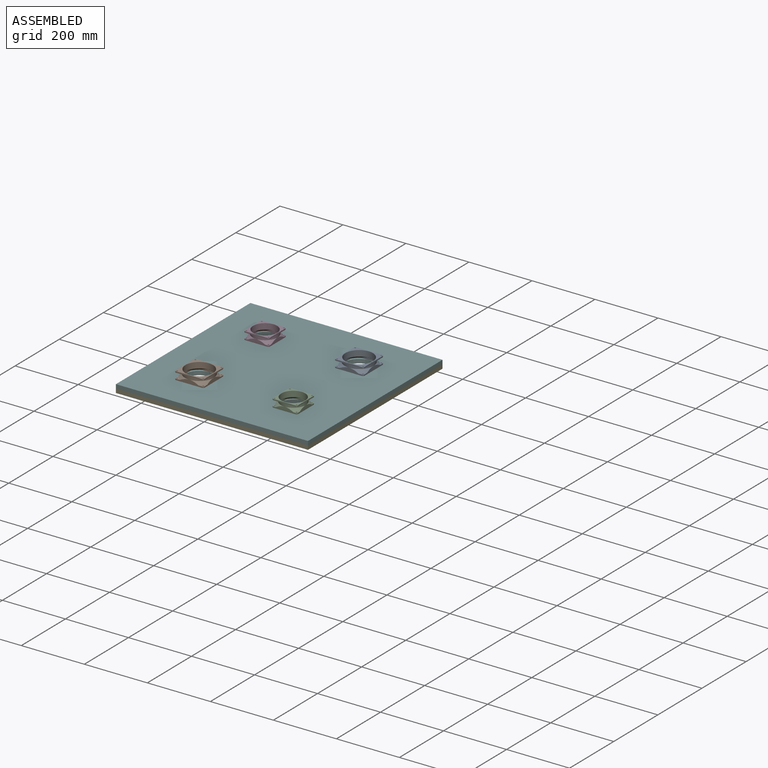
[diagram: assembled view]
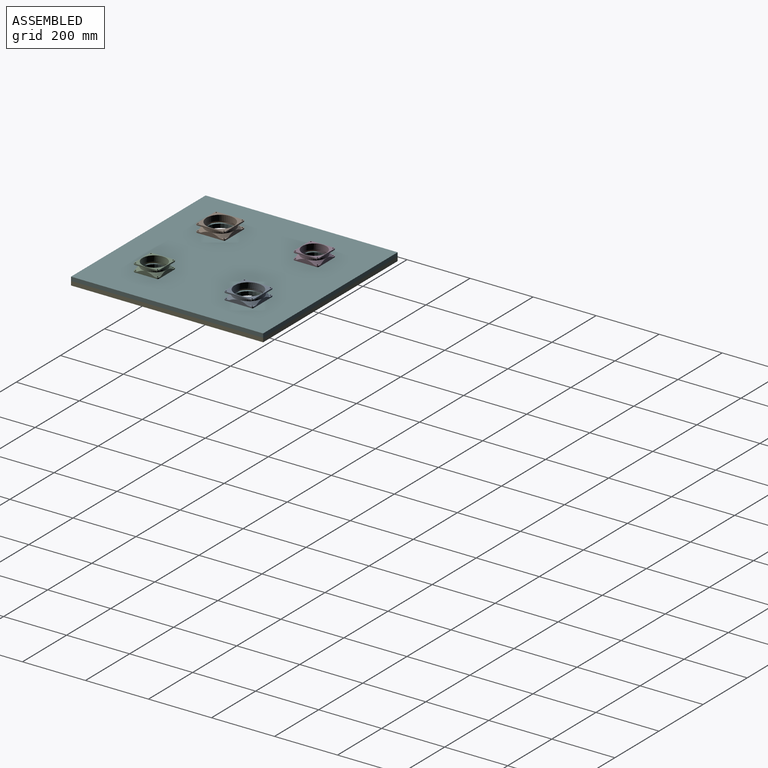
[diagram: assembled view, second angle]
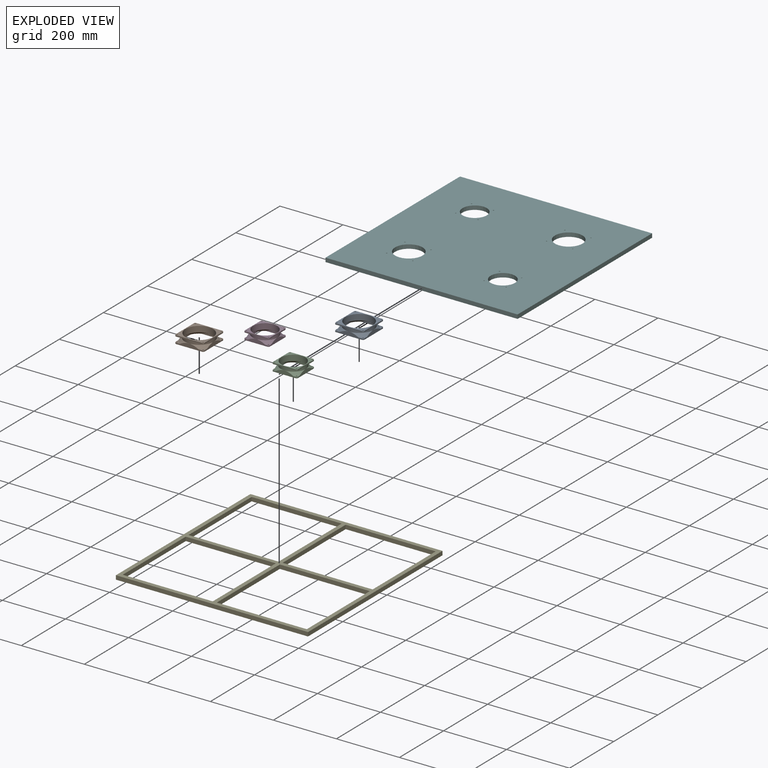
[diagram: exploded view]
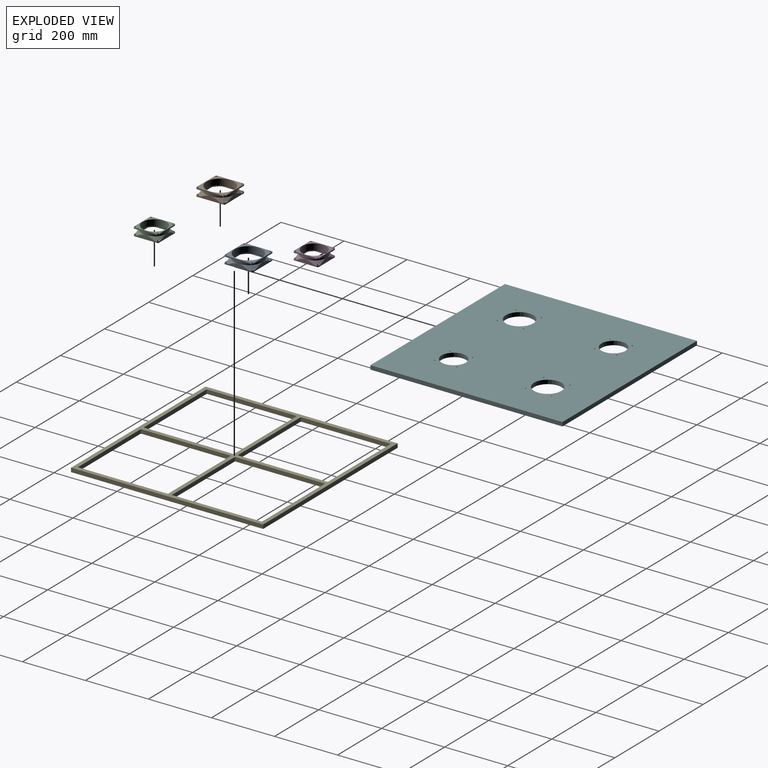
[diagram: exploded view, second angle]
ASSEMBLY  parts=6 mates=15
PART A: 45 faces, bbox 109.2x109.2x25.4 mm
  f0: cone r=50.93mm half-angle=45deg, axis (0,0,-1), area 1718.2mm2, adj f16,f23,f41,f42,f43,f44
  f1: plane 82.69x12.7mm, normal (1,0,0), area 667.7mm2, adj f9,f12,f23,f33,f36,f37,f39
  f2: plane 82.69x12.7mm, normal (0,1,0), area 667.7mm2, adj f9,f10,f23,f33,f34,f37,f38
  f3: plane 82.69x12.7mm, normal (-1,0,0), area 667.7mm2, adj f10,f11,f23,f32,f34,f38,f40
  f4: cylinder r=2.15mm len=4.31mm, axis (0,0,-1), area 54.1mm2, adj f23,f33
  f5: cylinder r=2.15mm len=4.31mm, axis (0,0,-1), area 54.1mm2, adj f23,f34
  f6: cylinder r=2.15mm len=4.31mm, axis (0,0,-1), area 54.1mm2, adj f23,f32
  f7: cylinder r=2.15mm len=4.31mm, axis (0,0,-1), area 54.1mm2, adj f23,f36
  f8: plane 82.69x12.7mm, normal (0,-1,0), area 667.7mm2, adj f11,f12,f23,f32,f36,f39,f40
  f9: cylinder r=4.53mm len=4.53mm, axis (0,0,1), area 28.5mm2, adj f1,f2,f23,f33
  f10: cylinder r=4.53mm len=4.53mm, axis (0,0,-1), area 28.5mm2, adj f2,f3,f23,f34
  f11: cylinder r=4.53mm len=4.53mm, axis (0,0,1), area 28.5mm2, adj f3,f8,f23,f32
  f12: cylinder r=4.53mm len=4.53mm, axis (0,0,-1), area 28.5mm2, adj f1,f8,f23,f36
  f13: plane 82.69x4mm, normal (1,0,0), area 330.8mm2, adj f22,f24,f27,f30,f35
  f14: plane 82.69x4mm, normal (0,1,0), area 330.8mm2, adj f22,f24,f25,f30,f31
  f15: plane 82.69x4mm, normal (-1,0,0), area 330.8mm2, adj f22,f25,f26,f29,f31
  f16: cylinder r=43.81mm len=87.63mm, axis (0,0,-1), area 5034.6mm2, adj f0,f22
  f17: cylinder r=2.15mm len=4.31mm, axis (0,0,-1), area 54.1mm2, adj f22,f30
  f18: cylinder r=2.15mm len=4.31mm, axis (0,0,-1), area 54.1mm2, adj f22,f31
  f19: cylinder r=2.15mm len=4.31mm, axis (0,0,-1), area 54.1mm2, adj f22,f29
  f20: cylinder r=2.15mm len=4.31mm, axis (0,0,-1), area 54.1mm2, adj f22,f35
  f21: plane 82.69x4mm, normal (0,-1,0), area 330.8mm2, adj f22,f26,f27,f29,f35
  f22: plane 91.76x91.76mm, normal (0,0,1), area 2312.5mm2, adj f13,f14,f15,f16,f17,f18,f19,f20
  f23: plane 91.76x91.76mm, normal (0,0,-1), area 1097.5mm2, adj f0,f1,f2,f3,f4,f5,f6,f7
  f24: cylinder r=4.53mm len=4.53mm, axis (0,0,1), area 28.5mm2, adj f13,f14,f22,f30
  f25: cylinder r=4.53mm len=4.53mm, axis (0,0,-1), area 28.5mm2, adj f14,f15,f22,f31
  f26: cylinder r=4.53mm len=4.53mm, axis (0,0,1), area 28.5mm2, adj f15,f21,f22,f29
  f27: cylinder r=4.53mm len=4.53mm, axis (0,0,-1), area 28.5mm2, adj f13,f21,f22,f35
  f28: cylinder r=45.88mm len=91.76mm, axis (0,0,1), area 2507.8mm2, adj f29,f30,f31,f35,f37,f38,f39,f40
  f29: plane 45.88x45.88mm, normal (0,0,-1), area 432.7mm2, adj f15,f19,f21,f26,f28
  f30: plane 45.88x45.88mm, normal (0,0,-1), area 432.7mm2, adj f13,f14,f17,f24,f28
  f31: plane 45.88x45.88mm, normal (0,0,-1), area 432.7mm2, adj f14,f15,f18,f25,f28
  f32: plane 16.32x16.32mm, normal (0,0,1), area 95.1mm2, adj f3,f6,f8,f11,f40
  f33: plane 16.32x16.32mm, normal (0,0,1), area 95.1mm2, adj f1,f2,f4,f9,f37
  f34: plane 16.32x16.32mm, normal (0,0,1), area 95.1mm2, adj f2,f3,f5,f10,f38
  f35: plane 45.88x45.88mm, normal (0,0,-1), area 432.7mm2, adj f13,f20,f21,f27,f28
  f36: plane 16.32x16.32mm, normal (0,0,1), area 95.1mm2, adj f1,f7,f8,f12,f39
  f37: cone r=45.88mm half-angle=45deg, axis (0,0,-1), area 477.5mm2, adj f1,f2,f28,f33
  f38: cone r=45.88mm half-angle=45deg, axis (0,0,-1), area 477.5mm2, adj f2,f3,f28,f34
  f39: cone r=45.88mm half-angle=45deg, axis (0,0,-1), area 477.5mm2, adj f1,f8,f28,f36
  f40: cone r=45.88mm half-angle=45deg, axis (0,0,-1), area 477.5mm2, adj f3,f8,f28,f32
  f41: plane 50.29x6.66mm, normal (0,-1,0), area 219.3mm2, adj f0,f23
  f42: plane 50.29x6.66mm, normal (-1,0,0), area 219.3mm2, adj f0,f23
  f43: plane 50.29x6.66mm, normal (1,0,0), area 219.3mm2, adj f0,f23
  f44: plane 50.29x6.66mm, normal (0,1,0), area 219.3mm2, adj f0,f23
PART B: same geometry as A
PART C: 48 faces, bbox 96.8x96.8x25.4 mm
  f0: cone r=45.21mm half-angle=45deg, axis (0,0,-1), area 326.2mm2, adj f18,f25,f45,f47
  f1: cone r=45.21mm half-angle=45deg, axis (0,0,-1), area 326.2mm2, adj f18,f25,f46,f47
  f2: cone r=45.21mm half-angle=45deg, axis (0,0,-1), area 326.2mm2, adj f18,f25,f44,f46
  f3: plane 70.31x12.7mm, normal (1,0,0), area 595.9mm2, adj f11,f14,f25,f35,f38,f39,f41
  f4: plane 70.31x12.7mm, normal (0,1,0), area 595.9mm2, adj f11,f12,f25,f35,f36,f39,f40
  f5: plane 70.31x12.7mm, normal (-1,0,0), area 595.9mm2, adj f12,f13,f25,f34,f36,f40,f42
  f6: cylinder r=2.15mm len=4.83mm, axis (0,0,-1), area 56.2mm2, adj f25,f35,f39
  f7: cylinder r=2.15mm len=4.83mm, axis (0,0,-1), area 56.2mm2, adj f25,f36,f40
  f8: cylinder r=2.15mm len=4.83mm, axis (0,0,-1), area 56.2mm2, adj f25,f34,f42
  f9: cylinder r=2.15mm len=4.83mm, axis (0,0,-1), area 56.2mm2, adj f25,f38,f41
  f10: plane 70.31x12.7mm, normal (0,-1,0), area 595.9mm2, adj f13,f14,f25,f34,f38,f41,f42
  f11: cylinder r=4.53mm len=4.53mm, axis (0,0,1), area 28.5mm2, adj f3,f4,f25,f35
  f12: cylinder r=4.53mm len=4.53mm, axis (0,0,-1), area 28.5mm2, adj f4,f5,f25,f36
  f13: cylinder r=4.53mm len=4.53mm, axis (0,0,1), area 28.5mm2, adj f5,f10,f25,f34
  f14: cylinder r=4.53mm len=4.53mm, axis (0,0,-1), area 28.5mm2, adj f3,f10,f25,f38
  f15: plane 70.31x4mm, normal (1,0,0), area 281.3mm2, adj f24,f26,f29,f32,f37
  f16: plane 70.31x4mm, normal (0,1,0), area 281.3mm2, adj f24,f26,f27,f32,f33
  f17: plane 70.31x4mm, normal (-1,0,0), area 281.3mm2, adj f24,f27,f28,f31,f33
  f18: cylinder r=38.1mm len=76.2mm, axis (0,0,-1), area 4378mm2, adj f0,f1,f2,f24,f43
  f19: cylinder r=2.15mm len=4.31mm, axis (0,0,-1), area 54.1mm2, adj f24,f32
  f20: cylinder r=2.15mm len=4.31mm, axis (0,0,-1), area 54.1mm2, adj f24,f33
  f21: cylinder r=2.15mm len=4.31mm, axis (0,0,-1), area 54.1mm2, adj f24,f31
  f22: cylinder r=2.15mm len=4.31mm, axis (0,0,-1), area 54.1mm2, adj f24,f37
  f23: plane 70.31x4mm, normal (0,-1,0), area 281.3mm2, adj f24,f28,f29,f31,f37
  f24: plane 79.38x79.38mm, normal (0,0,1), area 1664.1mm2, adj f15,f16,f17,f18,f19,f20,f21,f22
  f25: plane 79.38x79.38mm, normal (0,0,-1), area 741.6mm2, adj f0,f1,f2,f3,f4,f5,f6,f7
  f26: cylinder r=4.53mm len=4.53mm, axis (0,0,1), area 28.5mm2, adj f15,f16,f24,f32
  f27: cylinder r=4.53mm len=4.53mm, axis (0,0,-1), area 28.5mm2, adj f16,f17,f24,f33
  f28: cylinder r=4.53mm len=4.53mm, axis (0,0,1), area 28.5mm2, adj f17,f23,f24,f31
  f29: cylinder r=4.53mm len=4.53mm, axis (0,0,-1), area 28.5mm2, adj f15,f23,f24,f37
  f30: cylinder r=39.69mm len=79.38mm, axis (0,0,1), area 2169.3mm2, adj f31,f32,f33,f37,f39,f40,f41,f42
  f31: plane 39.69x39.69mm, normal (0,0,-1), area 319mm2, adj f17,f21,f23,f28,f30
  f32: plane 39.69x39.69mm, normal (0,0,-1), area 319mm2, adj f15,f16,f19,f26,f30
  f33: plane 39.69x39.69mm, normal (0,0,-1), area 319mm2, adj f16,f17,f20,f27,f30
  f34: plane 12.01x12.01mm, normal (0,0,1), area 46.5mm2, adj f5,f8,f10,f13,f42
  f35: plane 12.01x12.01mm, normal (0,0,1), area 46.5mm2, adj f3,f4,f6,f11,f39
  f36: plane 12.01x12.01mm, normal (0,0,1), area 46.5mm2, adj f4,f5,f7,f12,f40
  f37: plane 39.69x39.69mm, normal (0,0,-1), area 319mm2, adj f15,f22,f23,f29,f30
  f38: plane 12.01x12.01mm, normal (0,0,1), area 46.5mm2, adj f3,f9,f10,f14,f41
  f39: cone r=39.69mm half-angle=45deg, axis (0,0,-1), area 385.4mm2, adj f3,f4,f6,f30,f35
  f40: cone r=39.69mm half-angle=45deg, axis (0,0,-1), area 385.4mm2, adj f4,f5,f7,f30,f36
  f41: cone r=39.69mm half-angle=45deg, axis (0,0,-1), area 385.4mm2, adj f3,f9,f10,f30,f38
  f42: cone r=39.69mm half-angle=45deg, axis (0,0,-1), area 385.4mm2, adj f5,f8,f10,f30,f34
  f43: cone r=45.21mm half-angle=45deg, axis (0,0,-1), area 326.2mm2, adj f18,f25,f44,f45
  f44: plane 48.7x7.13mm, normal (0,-1,0), area 226.8mm2, adj f2,f25,f43
  f45: plane 48.7x7.13mm, normal (-1,0,0), area 226.8mm2, adj f0,f25,f43
  f46: plane 48.7x7.13mm, normal (1,0,0), area 226.8mm2, adj f1,f2,f25
  f47: plane 48.7x7.13mm, normal (0,1,0), area 226.8mm2, adj f0,f1,f25
PART D: same geometry as C
PART E: 22 faces, bbox 609.6x609.6x12.7 mm
  f0: plane 285.75x12.7mm, normal (-1,0,0), area 3629mm2, adj f1,f19,f20,f21
  f1: plane 285.75x12.7mm, normal (0,1,0), area 3629mm2, adj f0,f2,f20,f21
  f2: plane 285.75x12.7mm, normal (1,0,0), area 3629mm2, adj f1,f19,f20,f21
  f3: plane 285.75x12.7mm, normal (1,0,0), area 3629mm2, adj f4,f15,f20,f21
  f4: plane 285.75x12.7mm, normal (0,-1,0), area 3629mm2, adj f3,f5,f20,f21
  f5: plane 285.75x12.7mm, normal (-1,0,0), area 3629mm2, adj f4,f15,f20,f21
  f6: plane 609.6x12.7mm, normal (0,-1,0), area 7741.9mm2, adj f7,f16,f20,f21
  f7: plane 609.6x12.7mm, normal (1,0,0), area 7741.9mm2, adj f6,f8,f20,f21
  f8: plane 609.6x12.7mm, normal (0,1,0), area 7741.9mm2, adj f7,f16,f20,f21
  f9: plane 285.75x12.7mm, normal (0,-1,0), area 3629mm2, adj f10,f17,f20,f21
  f10: plane 285.75x12.7mm, normal (-1,0,0), area 3629mm2, adj f9,f11,f20,f21
  f11: plane 285.75x12.7mm, normal (0,1,0), area 3629mm2, adj f10,f17,f20,f21
  f12: plane 285.75x12.7mm, normal (0,1,0), area 3629mm2, adj f13,f18,f20,f21
  f13: plane 285.75x12.7mm, normal (1,0,0), area 3629mm2, adj f12,f14,f20,f21
  f14: plane 285.75x12.7mm, normal (0,-1,0), area 3629mm2, adj f13,f18,f20,f21
  f15: plane 285.75x12.7mm, normal (0,1,0), area 3629mm2, adj f3,f5,f20,f21
  f16: plane 609.6x12.7mm, normal (-1,0,0), area 7741.9mm2, adj f6,f8,f20,f21
  f17: plane 285.75x12.7mm, normal (1,0,0), area 3629mm2, adj f9,f11,f20,f21
  f18: plane 285.75x12.7mm, normal (-1,0,0), area 3629mm2, adj f12,f14,f20,f21
  f19: plane 285.75x12.7mm, normal (0,-1,0), area 3629mm2, adj f0,f2,f20,f21
  f20: plane 609.6x609.6mm, normal (0,0,1), area 44999.9mm2, adj f0,f1,f2,f3,f4,f5,f6,f7
  f21: plane 609.6x609.6mm, normal (0,0,-1), area 44999.9mm2, adj f0,f1,f2,f3,f4,f5,f6,f7
PART F: 26 faces, bbox 609.6x609.6x12.7 mm
  f0: plane 609.6x12.7mm, normal (0,-1,0), area 7741.9mm2, adj f1,f23,f24,f25
  f1: plane 609.6x12.7mm, normal (1,0,0), area 7741.9mm2, adj f0,f2,f24,f25
  f2: plane 609.6x12.7mm, normal (0,1,0), area 7741.9mm2, adj f1,f23,f24,f25
  f3: cylinder r=43.87mm len=87.73mm, axis (0,0,-1), area 3500.3mm2, adj f24,f25
  f4: cylinder r=38.73mm len=77.47mm, axis (0,0,-1), area 3090.9mm2, adj f24,f25
  f5: cylinder r=43.87mm len=87.73mm, axis (0,0,-1), area 3500.3mm2, adj f24,f25
  f6: cylinder r=38.73mm len=77.47mm, axis (0,0,-1), area 3090.9mm2, adj f24,f25
  f7: cylinder r=1.83mm len=12.7mm, axis (0,0,-1), area 145.9mm2, adj f24,f25
  f8: cylinder r=1.83mm len=12.7mm, axis (0,0,-1), area 145.9mm2, adj f24,f25
  f9: cylinder r=1.83mm len=12.7mm, axis (0,0,-1), area 145.9mm2, adj f24,f25
  f10: cylinder r=1.83mm len=12.7mm, axis (0,0,-1), area 145.9mm2, adj f24,f25
  f11: cylinder r=1.83mm len=12.7mm, axis (0,0,-1), area 145.9mm2, adj f24,f25
  f12: cylinder r=1.83mm len=12.7mm, axis (0,0,-1), area 145.9mm2, adj f24,f25
  f13: cylinder r=1.83mm len=12.7mm, axis (0,0,-1), area 145.9mm2, adj f24,f25
  f14: cylinder r=1.83mm len=12.7mm, axis (0,0,-1), area 145.9mm2, adj f24,f25
  f15: cylinder r=1.83mm len=12.7mm, axis (0,0,-1), area 145.9mm2, adj f24,f25
  f16: cylinder r=1.83mm len=12.7mm, axis (0,0,-1), area 145.9mm2, adj f24,f25
  f17: cylinder r=1.83mm len=12.7mm, axis (0,0,-1), area 145.9mm2, adj f24,f25
  f18: cylinder r=1.83mm len=12.7mm, axis (0,0,-1), area 145.9mm2, adj f24,f25
  f19: cylinder r=1.83mm len=12.7mm, axis (0,0,-1), area 145.9mm2, adj f24,f25
  f20: cylinder r=1.83mm len=12.7mm, axis (0,0,-1), area 145.9mm2, adj f24,f25
  f21: cylinder r=1.83mm len=12.7mm, axis (0,0,-1), area 145.9mm2, adj f24,f25
  f22: cylinder r=1.83mm len=12.7mm, axis (0,0,-1), area 145.9mm2, adj f24,f25
  f23: plane 609.6x12.7mm, normal (-1,0,0), area 7741.9mm2, adj f0,f2,f24,f25
  f24: plane 609.6x609.6mm, normal (0,0,1), area 349926.6mm2, adj f0,f1,f2,f3,f4,f5,f6,f7
  f25: plane 609.6x609.6mm, normal (0,0,-1), area 349926.6mm2, adj f0,f1,f2,f3,f4,f5,f6,f7
PLACE A t=(238.99,304.37,3.34)mm
PLACE B rot(axis=(0,0,1),180deg) t=(-59.46,5.92,3.34)mm
PLACE C t=(238.99,5.92,3.34)mm
PLACE D rot(axis=(0,0,-1),90deg) t=(-59.46,304.37,3.34)mm
PLACE E rot(axis=(0,0,-1),90deg) t=(89.77,155.14,-22.06)mm
PLACE F rot(axis=(0,0,-1),90deg) t=(89.77,155.14,-9.36)mm
MATE cylindrical C.f0 <-> F.f4  axis (0,0,-1) through (238.99,5.92,19.59)mm
MATE cylindrical C.f7 <-> F.f11  axis (0,0,-1) through (203.84,41.07,8.2)mm
MATE planar F.f24 <-> A.f0  axis (0,0,1) through (89.77,155.14,3.34)mm
MATE planar E.f20 <-> F.f25  axis (0,0,1) through (89.77,155.14,-9.36)mm
MATE planar D.f25 <-> F.f24  axis (0,0,-1) through (-21.36,328.71,3.34)mm
MATE planar F.f24 <-> C.f9  axis (0,0,1) through (89.77,155.14,3.34)mm
MATE cylindrical F.f10 <-> A.f6  axis (0,0,-1) through (197.65,263.02,-3.01)mm
MATE cylindrical B.f6 <-> F.f20  axis (0,0,-1) through (-18.11,47.26,5.34)mm
MATE cylindrical D.f0 <-> F.f6  axis (0,0,-1) through (-59.46,304.37,19.59)mm
MATE cylindrical A.f0 <-> F.f3  axis (0,0,-1) through (238.99,304.37,19.59)mm
MATE planar F.f0 <-> E.f6  axis (-1,0,0) through (-215.03,155.14,-3.01)mm
MATE planar F.f1 <-> E.f7  axis (0,-1,0) through (89.77,-149.66,-3.01)mm
MATE cylindrical B.f0 <-> F.f5  axis (0,0,-1) through (-59.46,5.92,19.59)mm
MATE planar B.f0 <-> F.f24  axis (0,0,-1) through (-59.46,5.92,3.34)mm
MATE cylindrical F.f16 <-> D.f6  axis (0,0,-1) through (-24.3,269.21,-3.01)mm
